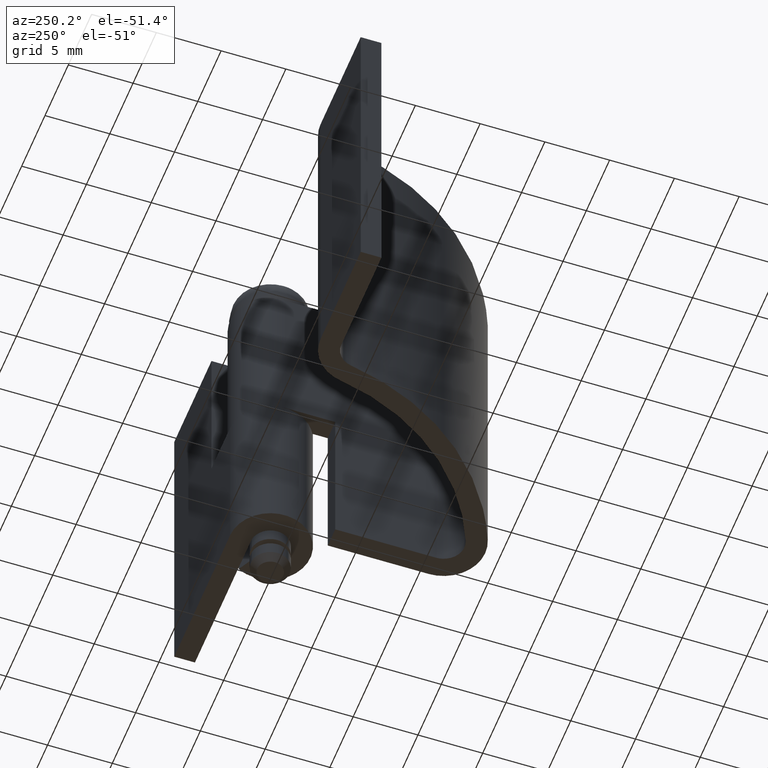
[diagram: clean part render]
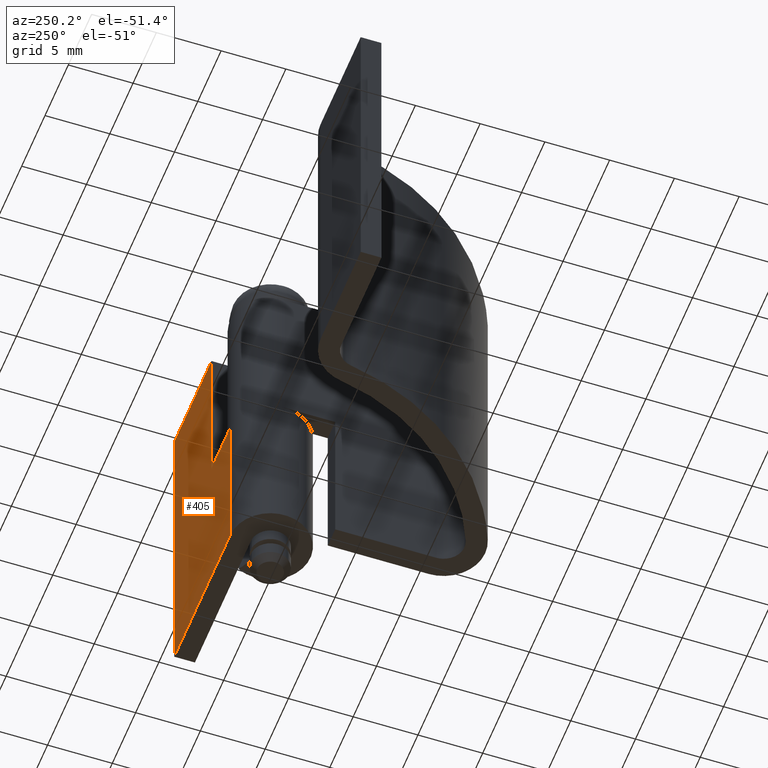
[diagram: same view with one face highlighted and labeled with its STEP entity id]
A machine part, auxiliary view. The second image highlights one B-rep face of the part: STEP entity #405.
In plain terms, the highlighted face is a freeform B-spline surface patch.
Its self-contained STEP definition (entity closure, byte-faithful):
#51=CARTESIAN_POINT('',(-0.003521362805220,3.099998000000000,15.500000000000000));
#52=VERTEX_POINT('',#51);
#107=CARTESIAN_POINT('',(4.0,3.099994500000050,15.500000000000000));
#108=VERTEX_POINT('',#107);
#114=CARTESIAN_POINT('',(0.007469934294737,3.099991000000100,15.500000000000000));
#115=VERTEX_POINT('',#114);
#116=CARTESIAN_POINT('',(4.0,3.099994500000050,15.500000000000000));
#117=CARTESIAN_POINT('',(0.007469934294737,3.099991000000100,15.500000000000000));
#118=QUASI_UNIFORM_CURVE('',1,(#116,#117),.UNSPECIFIED.,.F.,.U.);
#119=EDGE_CURVE('',#108,#115,#118,.T.);
#121=CARTESIAN_POINT('',(-0.003521362805222,3.099997999999999,15.500000000000000));
#122=CARTESIAN_POINT('',(0.001974291949544,3.100004242647330,15.500000000000005));
#123=CARTESIAN_POINT('',(0.007469934294736,3.099991000000102,15.500000000000000));
#131=(BOUNDED_CURVE()B_SPLINE_CURVE(2,(#121,#122,#123),.UNSPECIFIED.,.F.,.U.)CURVE()GEOMETRIC_REPRESENTATION_ITEM()QUASI_UNIFORM_CURVE()RATIONAL_B_SPLINE_CURVE((1.0,0.999998428606193,1.0))REPRESENTATION_ITEM(''));
#132=EDGE_CURVE('',#52,#115,#131,.T.);
#144=CARTESIAN_POINT('',(4.0,3.099998000000000,28.000008000000001));
#145=VERTEX_POINT('',#144);
#151=CARTESIAN_POINT('',(4.0,3.099994500000050,15.500000000000000));
#152=CARTESIAN_POINT('',(4.0,3.099998000000000,28.000008000000001));
#153=QUASI_UNIFORM_CURVE('',1,(#151,#152),.UNSPECIFIED.,.F.,.U.);
#154=EDGE_CURVE('',#108,#145,#153,.T.);
#170=CARTESIAN_POINT('',(12.0,3.099998000000000,3.0));
#171=VERTEX_POINT('',#170);
#172=CARTESIAN_POINT('',(-0.003521362805220,3.099998000000000,3.0));
#173=VERTEX_POINT('',#172);
#174=CARTESIAN_POINT('',(12.0,3.099998000000000,3.0));
#175=CARTESIAN_POINT('',(-0.003521362805220,3.099998000000000,3.0));
#176=QUASI_UNIFORM_CURVE('',1,(#174,#175),.UNSPECIFIED.,.F.,.U.);
#177=EDGE_CURVE('',#171,#173,#176,.T.);
#249=CARTESIAN_POINT('',(12.0,3.099998000000000,28.000008000000001));
#250=VERTEX_POINT('',#249);
#251=CARTESIAN_POINT('',(12.0,3.099998000000000,28.000008000000001));
#252=CARTESIAN_POINT('',(12.0,3.099998000000000,3.0));
#253=QUASI_UNIFORM_CURVE('',1,(#251,#252),.UNSPECIFIED.,.F.,.U.);
#254=EDGE_CURVE('',#250,#171,#253,.T.);
#283=CARTESIAN_POINT('',(12.0,3.099998000000000,28.000008000000001));
#284=CARTESIAN_POINT('',(4.0,3.099998000000000,28.000008000000001));
#285=QUASI_UNIFORM_CURVE('',1,(#283,#284),.UNSPECIFIED.,.F.,.U.);
#286=EDGE_CURVE('',#250,#145,#285,.T.);
#380=CARTESIAN_POINT('',(-0.003521362805220,3.099998000000000,15.500000000000000));
#381=CARTESIAN_POINT('',(-0.003521362805220,3.099998000000000,3.0));
#382=QUASI_UNIFORM_CURVE('',1,(#380,#381),.UNSPECIFIED.,.F.,.U.);
#383=EDGE_CURVE('',#52,#173,#382,.T.);
#391=CARTESIAN_POINT('',(-0.603097231612188,3.099998000000000,1.751249738172456));
#392=CARTESIAN_POINT('',(-0.603097231612188,3.099998000000000,29.248757144240109));
#393=CARTESIAN_POINT('',(12.599576190766500,3.099998000000000,1.751249738172456));
#394=CARTESIAN_POINT('',(12.599576190766500,3.099998000000000,29.248757144240109));
#395=B_SPLINE_SURFACE_WITH_KNOTS('',1,1,((#391,#393),(#392,#394)),.UNSPECIFIED.,.F.,.F.,.U.,(2,2),(2,2),(0.0,27.497507406067651),(0.0,13.202673422378689),.UNSPECIFIED.);
#396=ORIENTED_EDGE('',*,*,#119,.F.);
#397=ORIENTED_EDGE('',*,*,#154,.T.);
#398=ORIENTED_EDGE('',*,*,#286,.F.);
#399=ORIENTED_EDGE('',*,*,#254,.T.);
#400=ORIENTED_EDGE('',*,*,#177,.T.);
#401=ORIENTED_EDGE('',*,*,#383,.F.);
#402=ORIENTED_EDGE('',*,*,#132,.T.);
#403=EDGE_LOOP('',(#396,#397,#398,#399,#400,#401,#402));
#404=FACE_OUTER_BOUND('',#403,.T.);
#405=ADVANCED_FACE('',(#404),#395,.T.);